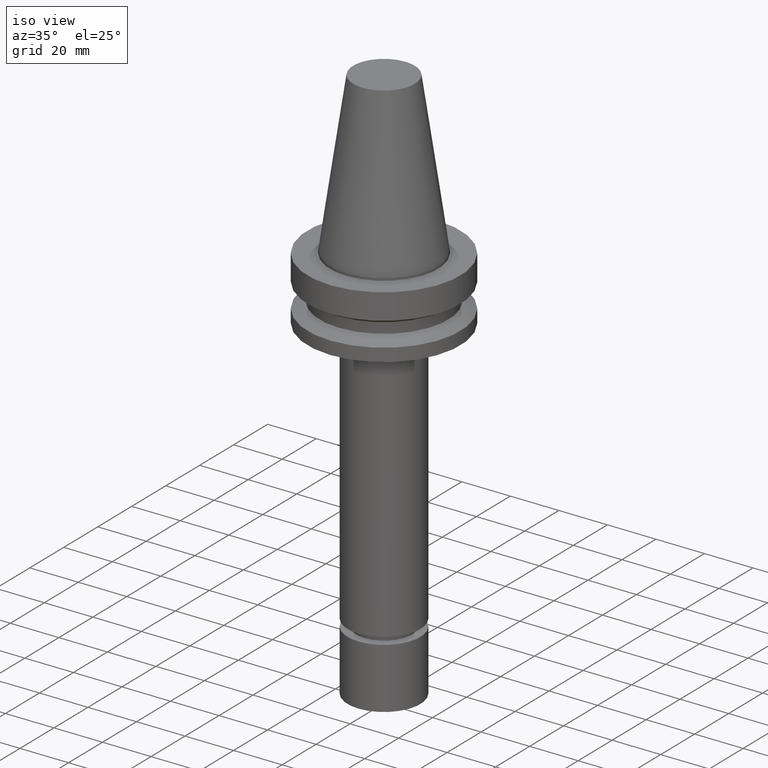
[diagram: clean part render]
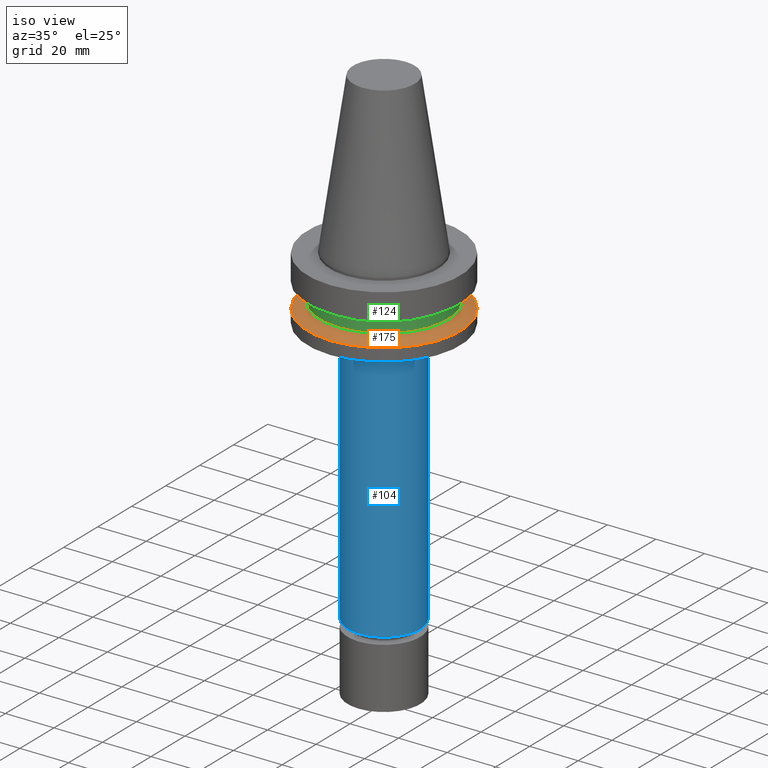
[diagram: same view with three faces highlighted in distinct colors, each labeled with its STEP entity id]
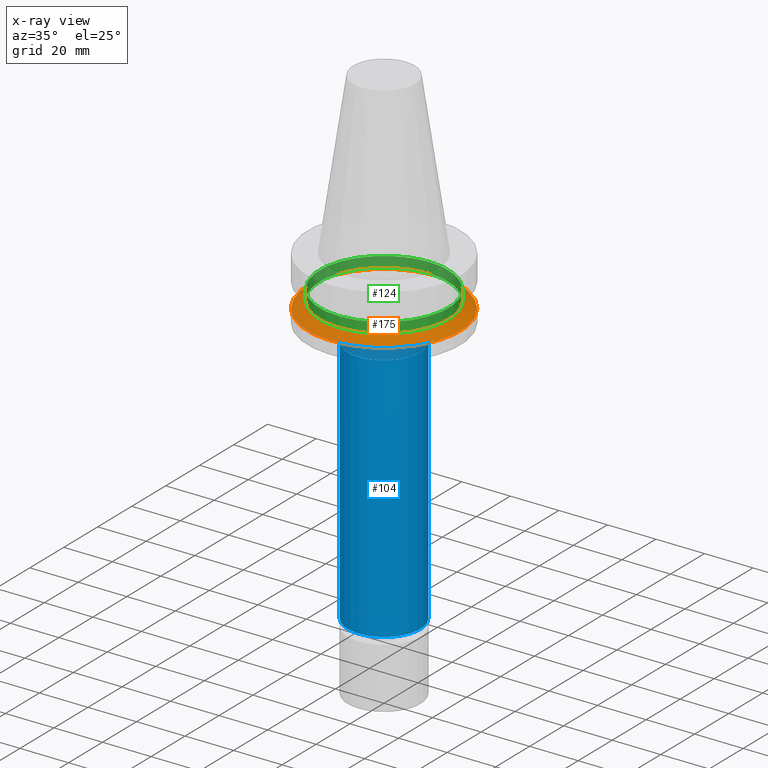
[diagram: x-ray of the same camera — body ghosted, the three highlighted faces saturated]
A machine part, iso view with three faces highlighted in distinct colors.
The next image is the same camera in x-ray (body ghosted, the three faces saturated) — at least one of them is partly hidden behind the body in this view.
Their STEP definitions:

[orange] entity #175 — the highlighted conical surface has half-angle 60 deg.
#144=EDGE_CURVE('Unnamed[1]',#305,#305,#306,.T.);
#170=EDGE_CURVE('Unnamed[1]',#346,#346,#347,.T.);
#175=ADVANCED_FACE('Unnamed[1]',(#353,#354),#355,.T.);
#305=VERTEX_POINT('',#506);
#306=CIRCLE('',#507,26.5);
#346=VERTEX_POINT('',#557);
#347=CIRCLE('',#558,31.5000000000006);
#353=FACE_BOUND('',#566,.T.);
#354=FACE_BOUND('',#567,.T.);
#355=CONICAL_SURFACE('',#568,29.0000000000003,1.04719755119651);
#506=CARTESIAN_POINT('',(1.1479681728942E-015,26.5,-18.7477430013855));
#507=AXIS2_PLACEMENT_3D('',#693,#694,#695);
#557=CARTESIAN_POINT('',(1.32473071268174E-015,31.5000000000007,-21.6344943473346));
#558=AXIS2_PLACEMENT_3D('',#740,#741,#742);
#566=EDGE_LOOP('',(#747));
#567=EDGE_LOOP('',(#748));
#568=AXIS2_PLACEMENT_3D('',#749,#750,#751);
#693=CARTESIAN_POINT('',(1.1479681728942E-015,7.15678553108459E-014,-18.7477430013855));
#694=DIRECTION('',(6.12323399573677E-017,-6.57737920628753E-017,-1.0));
#695=DIRECTION('',(-7.99669534920208E-034,1.0,-6.57737920628753E-017));
#740=CARTESIAN_POINT('',(1.32473071268174E-015,7.13779827280796E-014,-21.6344943473347));
#741=DIRECTION('',(6.12323399573677E-017,-6.5773792063199E-017,-1.0));
#742=DIRECTION('',(-7.99669534871199E-034,1.0,-6.5773792063199E-017));
#747=ORIENTED_EDGE('',*,*,#170,.F.);
#748=ORIENTED_EDGE('',*,*,#144,.T.);
#749=CARTESIAN_POINT('',(1.23634944278797E-015,7.14729190194627E-014,-20.1911186743601));
#750=DIRECTION('',(6.12323399573677E-017,-6.57737920630511E-017,-1.0));
#751=DIRECTION('',(-7.99669534868851E-034,1.0,-6.57737920630511E-017));

[blue] entity #104 — the highlighted cylindrical surface (bore or boss wall) has radius 15 mm, axis along (0, -0, -1).
#99=EDGE_CURVE('Unnamed[1]',#236,#236,#237,.T.);
#104=ADVANCED_FACE('Unnamed[1]',(#243,#244),#245,.T.);
#142=EDGE_CURVE('Unnamed[1]',#302,#302,#303,.T.);
#236=VERTEX_POINT('',#419);
#237=CIRCLE('',#420,15.0);
#243=FACE_BOUND('',#428,.T.);
#244=FACE_BOUND('',#429,.T.);
#245=CYLINDRICAL_SURFACE('',#430,15.0000000000002);
#302=VERTEX_POINT('',#502);
#303=CIRCLE('',#503,15.0000000000003);
#419=CARTESIAN_POINT('',(8.39495380815507E-015,15.0000000000001,-137.099999999999));
#420=AXIS2_PLACEMENT_3D('',#615,#616,#617);
#428=EDGE_LOOP('',(#622));
#429=EDGE_LOOP('',(#623));
#430=AXIS2_PLACEMENT_3D('',#624,#625,#626);
#502=CARTESIAN_POINT('',(2.07973442388957E-015,15.0000000000004,-33.9646406676204));
#503=AXIS2_PLACEMENT_3D('',#690,#691,#692);
#615=CARTESIAN_POINT('',(8.39495380815507E-015,6.37833785688202E-014,-137.099999999999));
#616=DIRECTION('',(6.12323399573677E-017,-6.57737920632003E-017,-1.0));
#617=DIRECTION('',(-7.99669534874632E-034,1.0,-6.57737920632003E-017));
#622=ORIENTED_EDGE('',*,*,#99,.F.);
#623=ORIENTED_EDGE('',*,*,#142,.T.);
#624=CARTESIAN_POINT('',(5.23734411602232E-015,6.71751804083608E-014,-85.5323203338099));
#625=DIRECTION('',(6.12323399573677E-017,-6.57737920631996E-017,-1.0));
#626=DIRECTION('',(-7.99669534874623E-034,1.0,-6.57737920631996E-017));
#690=CARTESIAN_POINT('',(2.07973442388957E-015,7.05669822479015E-014,-33.9646406676204));
#691=DIRECTION('',(6.12323399573677E-017,-6.57737920631989E-017,-1.0));
#692=DIRECTION('',(-7.99669534874614E-034,1.0,-6.57737920631989E-017));

[green] entity #124 — the highlighted cylindrical surface (bore or boss wall) has radius 26.5 mm, axis along (0, -0, -1).
#124=ADVANCED_FACE('Unnamed[1]',(#275,#276),#277,.T.);
#132=EDGE_CURVE('Unnamed[1]',#288,#288,#289,.T.);
#144=EDGE_CURVE('Unnamed[1]',#305,#305,#306,.T.);
#275=FACE_BOUND('',#467,.T.);
#276=FACE_BOUND('',#468,.T.);
#277=CYLINDRICAL_SURFACE('',#469,26.4999999999997);
#288=VERTEX_POINT('',#484);
#289=CIRCLE('',#485,26.4999999999994);
#305=VERTEX_POINT('',#506);
#306=CIRCLE('',#507,26.5);
#467=EDGE_LOOP('',(#660));
#468=EDGE_LOOP('',(#661));
#469=AXIS2_PLACEMENT_3D('',#662,#663,#664);
#484=CARTESIAN_POINT('',(8.8494551369045E-016,26.4999999999995,-14.4522569986152));
#485=AXIS2_PLACEMENT_3D('',#674,#675,#676);
#506=CARTESIAN_POINT('',(1.1479681728942E-015,26.5,-18.7477430013855));
#507=AXIS2_PLACEMENT_3D('',#693,#694,#695);
#660=ORIENTED_EDGE('',*,*,#144,.F.);
#661=ORIENTED_EDGE('',*,*,#132,.T.);
#662=CARTESIAN_POINT('',(1.01645684329232E-015,7.1709120512424E-014,-16.6000000000003));
#663=DIRECTION('',(6.12323399573677E-017,-6.5773792062876E-017,-1.0));
#664=DIRECTION('',(-7.99669534893143E-034,1.0,-6.5773792062876E-017));
#674=CARTESIAN_POINT('',(8.84945513690451E-016,7.18503857140021E-014,-14.4522569986152));
#675=DIRECTION('',(6.12323399573677E-017,-6.57737920628767E-017,-1.0));
#676=DIRECTION('',(-7.99669534893151E-034,1.0,-6.57737920628767E-017));
#693=CARTESIAN_POINT('',(1.1479681728942E-015,7.15678553108459E-014,-18.7477430013855));
#694=DIRECTION('',(6.12323399573677E-017,-6.57737920628753E-017,-1.0));
#695=DIRECTION('',(-7.99669534920208E-034,1.0,-6.57737920628753E-017));